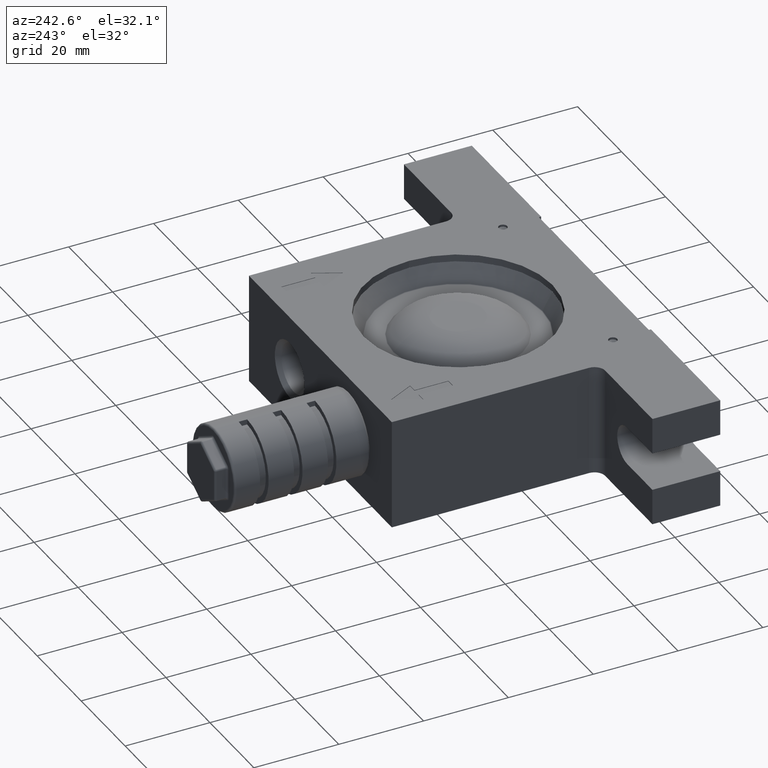
[diagram: clean part render]
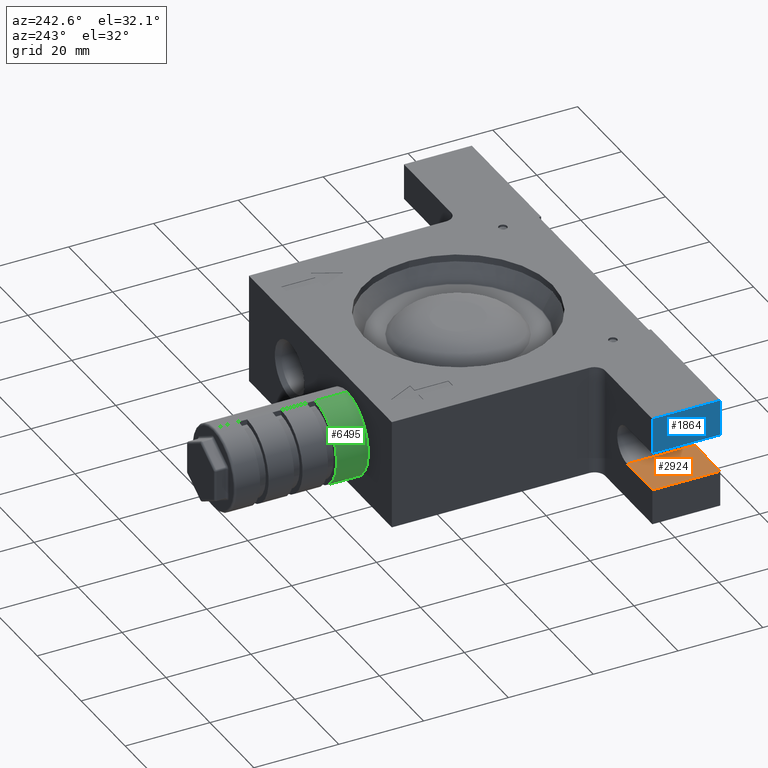
[diagram: same view with three faces highlighted in distinct colors, each labeled with its STEP entity id]
A machine part, auxiliary view with three faces highlighted in distinct colors.
Their STEP definitions:

[orange] entity #2924 — the highlighted planar face has unit normal (-0, 0, -1).
#37 = DIRECTION ( 'NONE',  ( 0.0000000000000000000, 1.000000000000000000, 0.0000000000000000000 ) ) ;
#303 = DIRECTION ( 'NONE',  ( -1.000000000000000000, 0.0000000000000000000, 6.788048384257060100E-016 ) ) ;
#329 = CARTESIAN_POINT ( 'NONE',  ( -56.50000000000000000, -32.50000000000000000, -4.500000000000000000 ) ) ;
#385 = CARTESIAN_POINT ( 'NONE',  ( -56.50000000000000000, -32.50000000000000000, -4.500000000000000000 ) ) ;
#476 = AXIS2_PLACEMENT_3D ( 'NONE', #4572, #6197, #303 ) ;
#575 = CARTESIAN_POINT ( 'NONE',  ( -45.00000000000000000, -16.50000000000000000, -4.500000000000000000 ) ) ;
#750 = LINE ( 'NONE', #385, #5748 ) ;
#1101 = DIRECTION ( 'NONE',  ( -1.000000000000000000, 0.0000000000000000000, 6.788048384257060100E-016 ) ) ;
#1140 = EDGE_CURVE ( 'NONE', #4774, #4802, #5687, .T. ) ;
#1183 = CARTESIAN_POINT ( 'NONE',  ( -56.50000000000000000, -16.50000000000000000, -4.500000000000000000 ) ) ;
#1501 = ORIENTED_EDGE ( 'NONE', *, *, #5351, .F. ) ;
#1901 = VERTEX_POINT ( 'NONE', #6190 ) ;
#2924 = ADVANCED_FACE ( 'NONE', ( #6266 ), #6270, .F. ) ;
#3097 = DIRECTION ( 'NONE',  ( 0.0000000000000000000, 1.000000000000000000, 0.0000000000000000000 ) ) ;
#3402 = EDGE_CURVE ( 'NONE', #1901, #4878, #750, .T. ) ;
#4238 = VECTOR ( 'NONE', #37, 1000.000000000000000 ) ;
#4259 = EDGE_CURVE ( 'NONE', #4802, #4878, #4464, .T. ) ;
#4278 = VECTOR ( 'NONE', #5201, 1000.000000000000000 ) ;
#4306 = CARTESIAN_POINT ( 'NONE',  ( -56.50000000000000000, -16.50000000000000000, -4.500000000000000000 ) ) ;
#4394 = ORIENTED_EDGE ( 'NONE', *, *, #4259, .T. ) ;
#4446 = LINE ( 'NONE', #329, #4278 ) ;
#4464 = LINE ( 'NONE', #4306, #5221 ) ;
#4572 = CARTESIAN_POINT ( 'NONE',  ( -56.50000000000000000, -32.50000000000000000, -4.500000000000000000 ) ) ;
#4774 = VERTEX_POINT ( 'NONE', #6538 ) ;
#4802 = VERTEX_POINT ( 'NONE', #575 ) ;
#4878 = VERTEX_POINT ( 'NONE', #1183 ) ;
#5201 = DIRECTION ( 'NONE',  ( -1.000000000000000000, 0.0000000000000000000, 6.788048384257060100E-016 ) ) ;
#5221 = VECTOR ( 'NONE', #1101, 1000.000000000000000 ) ;
#5351 = EDGE_CURVE ( 'NONE', #4774, #1901, #4446, .T. ) ;
#5544 = ORIENTED_EDGE ( 'NONE', *, *, #3402, .F. ) ;
#5687 = LINE ( 'NONE', #5983, #4238 ) ;
#5748 = VECTOR ( 'NONE', #3097, 1000.000000000000000 ) ;
#5983 = CARTESIAN_POINT ( 'NONE',  ( -45.00000000000000000, -32.50000000000000000, -4.500000000000000000 ) ) ;
#6190 = CARTESIAN_POINT ( 'NONE',  ( -56.50000000000000000, -32.50000000000000000, -4.500000000000000000 ) ) ;
#6197 = DIRECTION ( 'NONE',  ( -6.788048384257060100E-016, 0.0000000000000000000, -1.000000000000000000 ) ) ;
#6255 = ORIENTED_EDGE ( 'NONE', *, *, #1140, .T. ) ;
#6266 = FACE_OUTER_BOUND ( 'NONE', #6993, .T. ) ;
#6270 = PLANE ( 'NONE',  #476 ) ;
#6538 = CARTESIAN_POINT ( 'NONE',  ( -45.00000000000000000, -32.50000000000000000, -4.500000000000000000 ) ) ;
#6993 = EDGE_LOOP ( 'NONE', ( #4394, #5544, #1501, #6255 ) ) ;

[blue] entity #1864 — the highlighted planar face has unit normal (1, 0, 0).
#17 = CARTESIAN_POINT ( 'NONE',  ( -56.50000000000000000, -32.50000000000000000, 4.500000000000000000 ) ) ;
#104 = LINE ( 'NONE', #4724, #5182 ) ;
#151 = EDGE_CURVE ( 'NONE', #5061, #3100, #6130, .T. ) ;
#248 = LINE ( 'NONE', #5466, #6346 ) ;
#505 = FACE_OUTER_BOUND ( 'NONE', #5710, .T. ) ;
#519 = LINE ( 'NONE', #6071, #1955 ) ;
#713 = DIRECTION ( 'NONE',  ( 0.0000000000000000000, 0.0000000000000000000, -1.000000000000000000 ) ) ;
#889 = ORIENTED_EDGE ( 'NONE', *, *, #2622, .F. ) ;
#1045 = CARTESIAN_POINT ( 'NONE',  ( -56.50000000000000000, -32.50000000000000000, 13.00000000000000000 ) ) ;
#1302 = CARTESIAN_POINT ( 'NONE',  ( -56.50000000000000000, -32.50000000000000000, 13.00000000000000000 ) ) ;
#1378 = AXIS2_PLACEMENT_3D ( 'NONE', #3363, #3930, #713 ) ;
#1474 = DIRECTION ( 'NONE',  ( 0.0000000000000000000, 0.0000000000000000000, -1.000000000000000000 ) ) ;
#1864 = ADVANCED_FACE ( 'NONE', ( #505 ), #3829, .F. ) ;
#1955 = VECTOR ( 'NONE', #4924, 1000.000000000000000 ) ;
#2575 = VERTEX_POINT ( 'NONE', #17 ) ;
#2622 = EDGE_CURVE ( 'NONE', #2575, #5970, #248, .T. ) ;
#3100 = VERTEX_POINT ( 'NONE', #1045 ) ;
#3156 = VECTOR ( 'NONE', #5584, 1000.000000000000000 ) ;
#3363 = CARTESIAN_POINT ( 'NONE',  ( -56.50000000000000000, -32.50000000000000000, 13.00000000000000000 ) ) ;
#3519 = ORIENTED_EDGE ( 'NONE', *, *, #6702, .F. ) ;
#3605 = ORIENTED_EDGE ( 'NONE', *, *, #6626, .F. ) ;
#3708 = CARTESIAN_POINT ( 'NONE',  ( -56.50000000000000000, -16.50000000000000000, 4.500000000000000000 ) ) ;
#3829 = PLANE ( 'NONE',  #1378 ) ;
#3930 = DIRECTION ( 'NONE',  ( 1.000000000000000000, 0.0000000000000000000, 0.0000000000000000000 ) ) ;
#4487 = CARTESIAN_POINT ( 'NONE',  ( -56.50000000000000000, -16.50000000000000000, 13.00000000000000000 ) ) ;
#4724 = CARTESIAN_POINT ( 'NONE',  ( -56.50000000000000000, -32.50000000000000000, 13.00000000000000000 ) ) ;
#4924 = DIRECTION ( 'NONE',  ( 0.0000000000000000000, 0.0000000000000000000, 1.000000000000000000 ) ) ;
#4936 = DIRECTION ( 'NONE',  ( 0.0000000000000000000, 1.000000000000000000, 0.0000000000000000000 ) ) ;
#5061 = VERTEX_POINT ( 'NONE', #4487 ) ;
#5182 = VECTOR ( 'NONE', #1474, 1000.000000000000000 ) ;
#5466 = CARTESIAN_POINT ( 'NONE',  ( -56.50000000000000000, -32.50000000000000000, 4.500000000000000000 ) ) ;
#5584 = DIRECTION ( 'NONE',  ( 0.0000000000000000000, -1.000000000000000000, 0.0000000000000000000 ) ) ;
#5710 = EDGE_LOOP ( 'NONE', ( #3519, #889, #3605, #6494 ) ) ;
#5970 = VERTEX_POINT ( 'NONE', #3708 ) ;
#6071 = CARTESIAN_POINT ( 'NONE',  ( -56.50000000000000000, -16.50000000000000000, -13.00000000000000000 ) ) ;
#6130 = LINE ( 'NONE', #1302, #3156 ) ;
#6346 = VECTOR ( 'NONE', #4936, 1000.000000000000000 ) ;
#6494 = ORIENTED_EDGE ( 'NONE', *, *, #151, .F. ) ;
#6626 = EDGE_CURVE ( 'NONE', #3100, #2575, #104, .T. ) ;
#6702 = EDGE_CURVE ( 'NONE', #5970, #5061, #519, .T. ) ;

[green] entity #6495 — the highlighted cylindrical surface (partial cylindrical patch) has radius 9.75 mm, axis along (-0, -1, -0).
#42 = ORIENTED_EDGE ( 'NONE', *, *, #1376, .F. ) ;
#54 = VERTEX_POINT ( 'NONE', #243 ) ;
#201 = ORIENTED_EDGE ( 'NONE', *, *, #1999, .F. ) ;
#243 = CARTESIAN_POINT ( 'NONE',  ( -13.00000000000000000, 40.50000000000000000, 9.750000000000000000 ) ) ;
#351 = DIRECTION ( 'NONE',  ( 5.959270968386779200E-017, 1.000000000000000000, 1.089523766022739900E-016 ) ) ;
#629 = ORIENTED_EDGE ( 'NONE', *, *, #1644, .T. ) ;
#1180 = AXIS2_PLACEMENT_3D ( 'NONE', #1468, #6929, #2076 ) ;
#1376 = EDGE_CURVE ( 'NONE', #54, #3235, #5250, .T. ) ;
#1449 = DIRECTION ( 'NONE',  ( -1.779203565104417600E-016, 0.0000000000000000000, -1.000000000000000000 ) ) ;
#1468 = CARTESIAN_POINT ( 'NONE',  ( -13.00000000000000000, 33.00000000000000000, -1.133443605698015900E-014 ) ) ;
#1601 = AXIS2_PLACEMENT_3D ( 'NONE', #1941, #4636, #5737 ) ;
#1644 = EDGE_CURVE ( 'NONE', #5058, #3509, #5424, .T. ) ;
#1941 = CARTESIAN_POINT ( 'NONE',  ( -13.00000000000000000, 64.50000000000000000, 2.543351750834285000E-015 ) ) ;
#1999 = EDGE_CURVE ( 'NONE', #5058, #54, #3546, .T. ) ;
#2076 = DIRECTION ( 'NONE',  ( -1.779203565104417600E-016, 0.0000000000000000000, -1.000000000000000000 ) ) ;
#2122 = CYLINDRICAL_SURFACE ( 'NONE', #1601, 9.750000000000000000 ) ;
#2370 = DIRECTION ( 'NONE',  ( -5.959270968386779200E-017, -1.000000000000000000, -1.089523766022739900E-016 ) ) ;
#2534 = VECTOR ( 'NONE', #6836, 1000.000000000000000 ) ;
#3045 = VECTOR ( 'NONE', #2370, 1000.000000000000000 ) ;
#3235 = VERTEX_POINT ( 'NONE', #4957 ) ;
#3324 = ORIENTED_EDGE ( 'NONE', *, *, #6930, .T. ) ;
#3509 = VERTEX_POINT ( 'NONE', #5405 ) ;
#3546 = CIRCLE ( 'NONE', #4655, 9.750000000000000000 ) ;
#4504 = CARTESIAN_POINT ( 'NONE',  ( -13.00000000000000000, 40.50000000000000000, -9.750000000000000000 ) ) ;
#4636 = DIRECTION ( 'NONE',  ( -5.959270968386779200E-017, -1.000000000000000000, -1.089523766022739900E-016 ) ) ;
#4655 = AXIS2_PLACEMENT_3D ( 'NONE', #6331, #351, #1449 ) ;
#4826 = CARTESIAN_POINT ( 'NONE',  ( -13.00000000000000400, 64.50000000000000000, -9.749999999999998200 ) ) ;
#4957 = CARTESIAN_POINT ( 'NONE',  ( -12.99999999999999800, 33.00000000000000000, 9.749999999999987600 ) ) ;
#5058 = VERTEX_POINT ( 'NONE', #4504 ) ;
#5097 = CARTESIAN_POINT ( 'NONE',  ( -12.99999999999999800, 64.50000000000000000, 9.750000000000001800 ) ) ;
#5250 = LINE ( 'NONE', #5097, #3045 ) ;
#5405 = CARTESIAN_POINT ( 'NONE',  ( -13.00000000000000500, 33.00000000000000000, -9.750000000000012400 ) ) ;
#5424 = LINE ( 'NONE', #4826, #2534 ) ;
#5438 = FACE_OUTER_BOUND ( 'NONE', #5805, .T. ) ;
#5737 = DIRECTION ( 'NONE',  ( 1.779203565104417600E-016, 0.0000000000000000000, 1.000000000000000000 ) ) ;
#5805 = EDGE_LOOP ( 'NONE', ( #201, #629, #3324, #42 ) ) ;
#6331 = CARTESIAN_POINT ( 'NONE',  ( -13.00000000000000000, 40.50000000000000000, 2.543351750834285000E-015 ) ) ;
#6495 = ADVANCED_FACE ( 'NONE', ( #5438 ), #2122, .T. ) ;
#6630 = CIRCLE ( 'NONE', #1180, 9.750000000000000000 ) ;
#6836 = DIRECTION ( 'NONE',  ( -5.959270968386779200E-017, -1.000000000000000000, -1.089523766022739900E-016 ) ) ;
#6929 = DIRECTION ( 'NONE',  ( 5.959270968386779200E-017, 1.000000000000000000, 1.089523766022739900E-016 ) ) ;
#6930 = EDGE_CURVE ( 'NONE', #3509, #3235, #6630, .T. ) ;